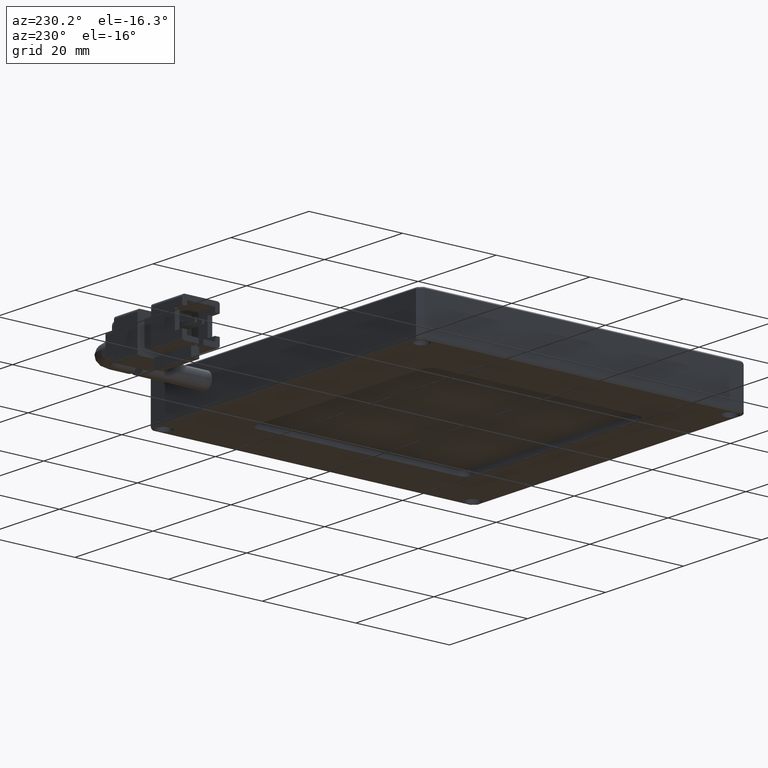
[diagram: clean part render]
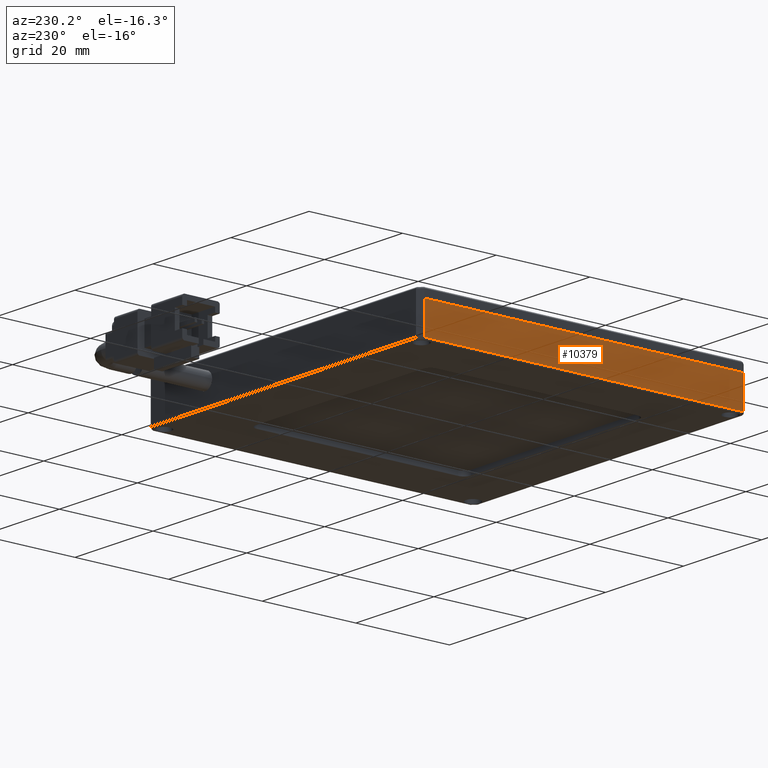
[diagram: same view with one face highlighted and labeled with its STEP entity id]
A machine part, auxiliary view. The second image highlights one B-rep face of the part: STEP entity #10379.
In plain terms, the highlighted planar face has unit normal (1, 0, -0).
Its self-contained STEP definition (entity closure, byte-faithful):
#541 = CARTESIAN_POINT ( 'NONE',  ( -47.46630710659897500, 72.53591370558376600, 4.000000000000000000 ) ) ;
#1031 = CARTESIAN_POINT ( 'NONE',  ( -47.46630710659900400, 71.53591370558375200, 4.000000000000000000 ) ) ;
#1289 = CARTESIAN_POINT ( 'NONE',  ( -47.46630710659897500, 3.535913705583759700, 4.000000000000000000 ) ) ;
#1702 = VERTEX_POINT ( 'NONE', #10706 ) ;
#1953 = DIRECTION ( 'NONE',  ( 0.0000000000000000000, 1.000000000000000000, 0.0000000000000000000 ) ) ;
#2406 = VERTEX_POINT ( 'NONE', #12300 ) ;
#2731 = DIRECTION ( 'NONE',  ( -0.0000000000000000000, -0.0000000000000000000, -1.000000000000000000 ) ) ;
#2915 = EDGE_CURVE ( 'NONE', #2406, #4797, #17726, .T. ) ;
#2934 = VERTEX_POINT ( 'NONE', #9997 ) ;
#3294 = VECTOR ( 'NONE', #9178, 1000.000000000000000 ) ;
#3577 = AXIS2_PLACEMENT_3D ( 'NONE', #15862, #7327, #17307 ) ;
#4797 = VERTEX_POINT ( 'NONE', #16899 ) ;
#5551 = ORIENTED_EDGE ( 'NONE', *, *, #15561, .F. ) ;
#6743 = FACE_OUTER_BOUND ( 'NONE', #12085, .T. ) ;
#6753 = VECTOR ( 'NONE', #2731, 1000.000000000000000 ) ;
#7327 = DIRECTION ( 'NONE',  ( 1.000000000000000000, 3.965082230804130200E-016, -0.0000000000000000000 ) ) ;
#7346 = LINE ( 'NONE', #541, #10725 ) ;
#7759 = CARTESIAN_POINT ( 'NONE',  ( -47.46630710659897500, 2.535913705583758800, -2.699999999999990400 ) ) ;
#8649 = ORIENTED_EDGE ( 'NONE', *, *, #13055, .F. ) ;
#9178 = DIRECTION ( 'NONE',  ( -1.982541115401916700E-016, 1.000000000000000000, -1.982541115402065100E-016 ) ) ;
#9997 = CARTESIAN_POINT ( 'NONE',  ( -47.46630710659897500, 3.535913705583759700, -2.699999999999994400 ) ) ;
#10036 = ORIENTED_EDGE ( 'NONE', *, *, #11705, .T. ) ;
#10141 = LINE ( 'NONE', #1289, #6753 ) ;
#10379 = ADVANCED_FACE ( 'NONE', ( #6743 ), #17246, .F. ) ;
#10706 = CARTESIAN_POINT ( 'NONE',  ( -47.46630710659897500, 3.535913705583759300, 4.000000000000000000 ) ) ;
#10725 = VECTOR ( 'NONE', #1953, 1000.000000000000000 ) ;
#10936 = LINE ( 'NONE', #7759, #3294 ) ;
#11643 = ORIENTED_EDGE ( 'NONE', *, *, #2915, .F. ) ;
#11705 = EDGE_CURVE ( 'NONE', #1702, #4797, #7346, .T. ) ;
#12085 = EDGE_LOOP ( 'NONE', ( #5551, #8649, #10036, #11643 ) ) ;
#12300 = CARTESIAN_POINT ( 'NONE',  ( -47.46630710659901100, 71.53591370558373800, -2.699999999999994400 ) ) ;
#13055 = EDGE_CURVE ( 'NONE', #1702, #2934, #10141, .T. ) ;
#13992 = VECTOR ( 'NONE', #16687, 1000.000000000000000 ) ;
#15561 = EDGE_CURVE ( 'NONE', #2934, #2406, #10936, .T. ) ;
#15862 = CARTESIAN_POINT ( 'NONE',  ( -47.46630710659897500, 2.535913705583758800, 4.000000000000000000 ) ) ;
#16687 = DIRECTION ( 'NONE',  ( 0.0000000000000000000, 0.0000000000000000000, 1.000000000000000000 ) ) ;
#16899 = CARTESIAN_POINT ( 'NONE',  ( -47.46630710659900400, 71.53591370558375200, 4.000000000000000000 ) ) ;
#17246 = PLANE ( 'NONE',  #3577 ) ;
#17307 = DIRECTION ( 'NONE',  ( -3.965082230804130200E-016, 1.000000000000000000, 0.0000000000000000000 ) ) ;
#17726 = LINE ( 'NONE', #1031, #13992 ) ;